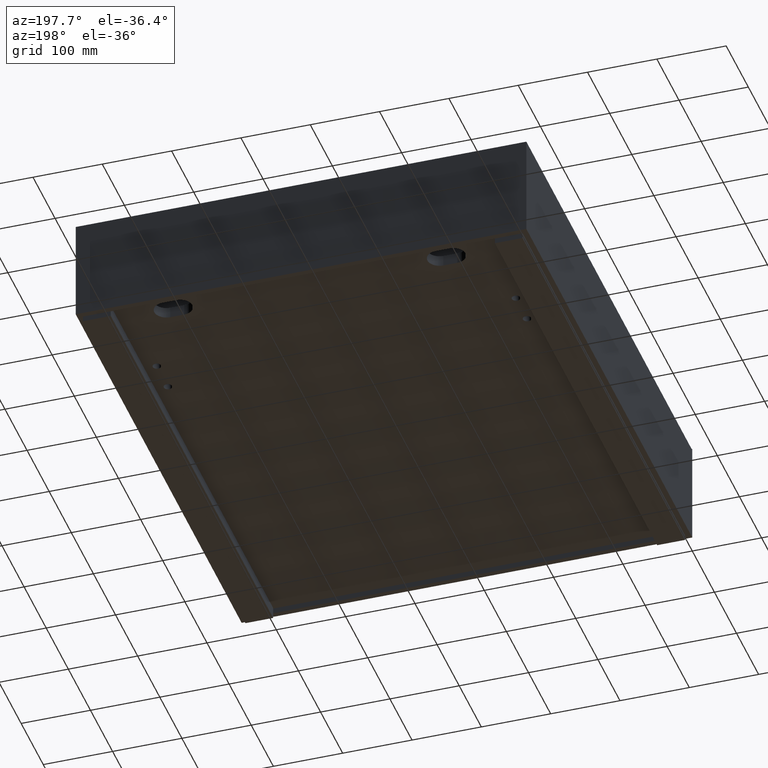
[diagram: clean part render]
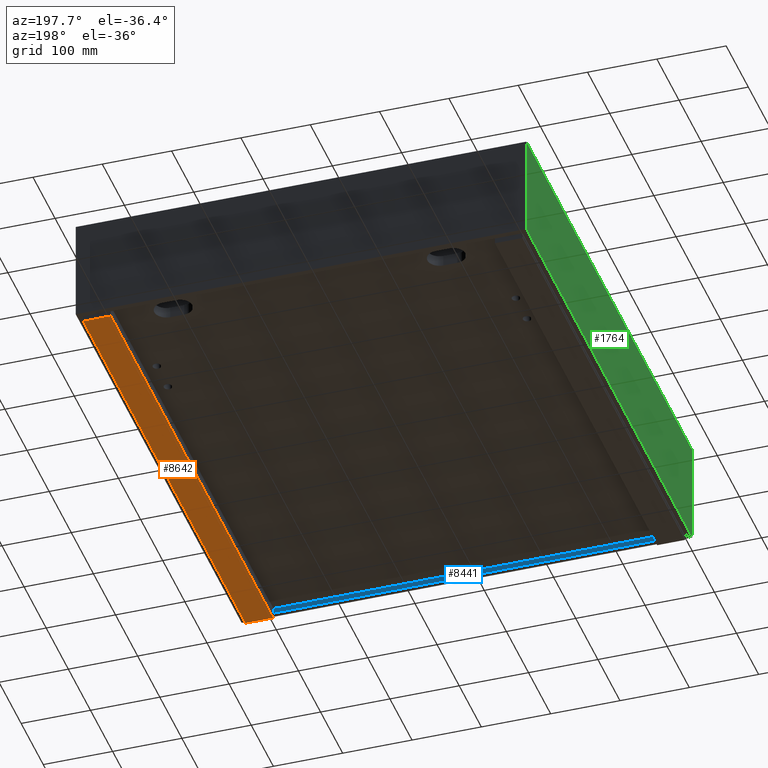
[diagram: same view with three faces highlighted in distinct colors, each labeled with its STEP entity id]
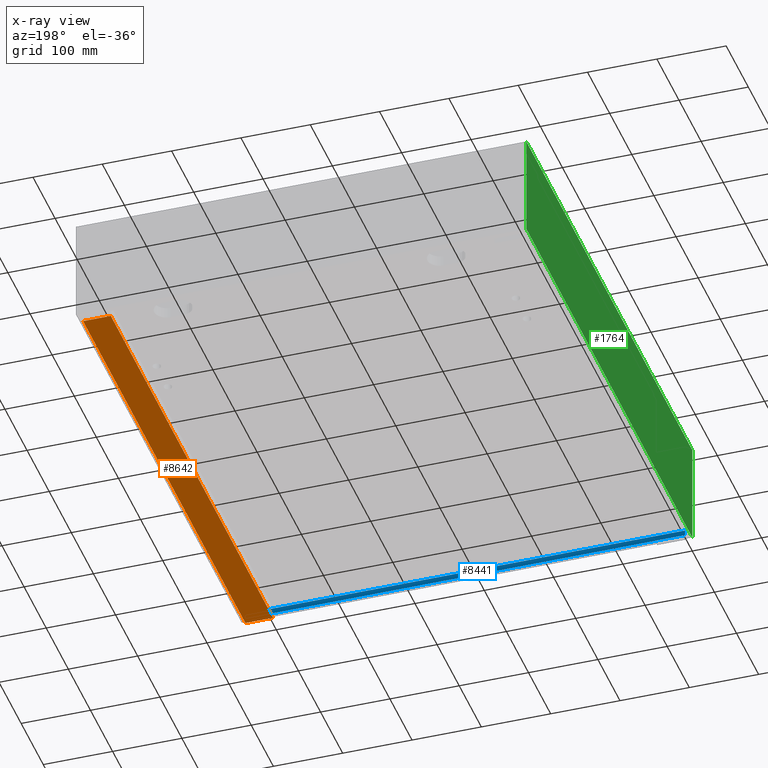
[diagram: x-ray of the same camera — body ghosted, the three highlighted faces saturated]
A machine part, auxiliary view with three faces highlighted in distinct colors.
The next image is the same camera in x-ray (body ghosted, the three faces saturated) — at least one of them is partly hidden behind the body in this view.
Their STEP definitions:

[orange] entity #8642 — the highlighted planar face has unit normal (0, 0, -1).
#9 = AXIS2_PLACEMENT_3D ( 'NONE', #1656, #5150, #8651 ) ;
#144 = LINE ( 'NONE', #3633, #8951 ) ;
#275 = LINE ( 'NONE', #3760, #6660 ) ;
#1144 = DIRECTION ( 'NONE',  ( 1.512565634716239722E-16, 1.000000000000000000, -0.0000000000000000000 ) ) ;
#1307 = CARTESIAN_POINT ( 'NONE',  ( 641.9999999999998863, 8.000000000000000000, -158.0000000000003126 ) ) ;
#1361 = VERTEX_POINT ( 'NONE', #1773 ) ;
#1598 = VERTEX_POINT ( 'NONE', #10067 ) ;
#1656 = CARTESIAN_POINT ( 'NONE',  ( -2.419716848542008714E-15, 0.0000000000000000000, -158.0000000000003126 ) ) ;
#1773 = CARTESIAN_POINT ( 'NONE',  ( 602.0000000000000000, 741.9999000000000251, -158.0000000000003126 ) ) ;
#2255 = EDGE_CURVE ( 'NONE', #1361, #1598, #275, .T. ) ;
#3633 = CARTESIAN_POINT ( 'NONE',  ( 642.0000000000000000, 741.9999000000000251, -158.0000000000003126 ) ) ;
#3760 = CARTESIAN_POINT ( 'NONE',  ( 642.0000000000000000, 741.9999000000000251, -158.0000000000003126 ) ) ;
#4302 = ORIENTED_EDGE ( 'NONE', *, *, #11279, .T. ) ;
#4440 = CARTESIAN_POINT ( 'NONE',  ( 601.9999999999998863, 8.000000000000000000, -158.0000000000003126 ) ) ;
#4804 = DIRECTION ( 'NONE',  ( -1.000000000000000000, 0.0000000000000000000, 0.0000000000000000000 ) ) ;
#5091 = VERTEX_POINT ( 'NONE', #11134 ) ;
#5150 = DIRECTION ( 'NONE',  ( 0.0000000000000000000, 0.0000000000000000000, -1.000000000000000000 ) ) ;
#5502 = LINE ( 'NONE', #9003, #6785 ) ;
#5998 = FACE_OUTER_BOUND ( 'NONE', #6544, .T. ) ;
#6544 = EDGE_LOOP ( 'NONE', ( #9162, #7152, #4302, #6625 ) ) ;
#6625 = ORIENTED_EDGE ( 'NONE', *, *, #2255, .T. ) ;
#6660 = VECTOR ( 'NONE', #7256, 1000.000000000000000 ) ;
#6785 = VECTOR ( 'NONE', #1144, 1000.000000000000000 ) ;
#7120 = DIRECTION ( 'NONE',  ( -1.512565634716239722E-16, -1.000000000000000000, 0.0000000000000000000 ) ) ;
#7152 = ORIENTED_EDGE ( 'NONE', *, *, #10775, .T. ) ;
#7256 = DIRECTION ( 'NONE',  ( 1.000000000000000000, -0.0000000000000000000, -0.0000000000000000000 ) ) ;
#7605 = EDGE_CURVE ( 'NONE', #1598, #5091, #144, .T. ) ;
#8642 = ADVANCED_FACE ( 'NONE', ( #5998 ), #9509, .T. ) ;
#8651 = DIRECTION ( 'NONE',  ( -1.000000000000000000, 0.0000000000000000000, 0.0000000000000000000 ) ) ;
#8951 = VECTOR ( 'NONE', #7120, 1000.000000000000000 ) ;
#9003 = CARTESIAN_POINT ( 'NONE',  ( 602.0000000000000000, 741.9999000000000251, -158.0000000000003126 ) ) ;
#9162 = ORIENTED_EDGE ( 'NONE', *, *, #7605, .T. ) ;
#9163 = LINE ( 'NONE', #1307, #10112 ) ;
#9509 = PLANE ( 'NONE',  #9 ) ;
#9865 = VERTEX_POINT ( 'NONE', #4440 ) ;
#10067 = CARTESIAN_POINT ( 'NONE',  ( 642.0000000000000000, 741.9999000000000251, -158.0000000000003126 ) ) ;
#10112 = VECTOR ( 'NONE', #4804, 1000.000000000000000 ) ;
#10775 = EDGE_CURVE ( 'NONE', #5091, #9865, #9163, .T. ) ;
#11134 = CARTESIAN_POINT ( 'NONE',  ( 641.9999999999998863, 8.000000000000000000, -158.0000000000003126 ) ) ;
#11279 = EDGE_CURVE ( 'NONE', #9865, #1361, #5502, .T. ) ;

[blue] entity #8441 — the highlighted planar face has unit normal (0, 1, 0).
#124 = CARTESIAN_POINT ( 'NONE',  ( -3.035766082959412415E-15, 8.000000000000000000, -142.0000000000000000 ) ) ;
#398 = CARTESIAN_POINT ( 'NONE',  ( 641.9999999999998863, 8.000000000000000000, 0.0000000000000000000 ) ) ;
#533 = VECTOR ( 'NONE', #6075, 1000.000000000000000 ) ;
#1218 = EDGE_CURVE ( 'NONE', #4160, #1593, #10143, .T. ) ;
#1593 = VERTEX_POINT ( 'NONE', #6561 ) ;
#1725 = VECTOR ( 'NONE', #5769, 1000.000000000000000 ) ;
#2015 = CARTESIAN_POINT ( 'NONE',  ( 8.000000000000062172, 8.000000000000000000, -142.0000000000000000 ) ) ;
#2111 = ORIENTED_EDGE ( 'NONE', *, *, #1218, .T. ) ;
#2277 = ORIENTED_EDGE ( 'NONE', *, *, #8472, .T. ) ;
#2286 = CARTESIAN_POINT ( 'NONE',  ( 0.0000000000000000000, 8.000000000000000000, -150.0000000000000000 ) ) ;
#2358 = DIRECTION ( 'NONE',  ( 0.0000000000000000000, 1.000000000000000000, 0.0000000000000000000 ) ) ;
#2592 = CARTESIAN_POINT ( 'NONE',  ( 8.000000000000062172, 8.000000000000000000, 0.0000000000000000000 ) ) ;
#2870 = VECTOR ( 'NONE', #3890, 1000.000000000000000 ) ;
#3214 = FACE_OUTER_BOUND ( 'NONE', #3370, .T. ) ;
#3370 = EDGE_LOOP ( 'NONE', ( #5926, #6884, #2111, #2277 ) ) ;
#3399 = CARTESIAN_POINT ( 'NONE',  ( 641.9999999999998863, 8.000000000000000000, -150.0000000000000000 ) ) ;
#3619 = DIRECTION ( 'NONE',  ( -1.000000000000000000, -0.0000000000000000000, 1.281026566875180510E-16 ) ) ;
#3890 = DIRECTION ( 'NONE',  ( 0.0000000000000000000, 0.0000000000000000000, -1.000000000000000000 ) ) ;
#4063 = VERTEX_POINT ( 'NONE', #6593 ) ;
#4160 = VERTEX_POINT ( 'NONE', #3399 ) ;
#4276 = EDGE_CURVE ( 'NONE', #4063, #11270, #7971, .T. ) ;
#4425 = EDGE_CURVE ( 'NONE', #4063, #4160, #8253, .T. ) ;
#5769 = DIRECTION ( 'NONE',  ( -1.000000000000000000, -0.0000000000000000000, -0.0000000000000000000 ) ) ;
#5842 = DIRECTION ( 'NONE',  ( 0.0000000000000000000, -0.0000000000000000000, 1.000000000000000000 ) ) ;
#5926 = ORIENTED_EDGE ( 'NONE', *, *, #4276, .F. ) ;
#6075 = DIRECTION ( 'NONE',  ( 0.0000000000000000000, -0.0000000000000000000, 1.000000000000000000 ) ) ;
#6561 = CARTESIAN_POINT ( 'NONE',  ( 8.000000000000062172, 8.000000000000000000, -150.0000000000000000 ) ) ;
#6593 = CARTESIAN_POINT ( 'NONE',  ( 641.9999999999998863, 8.000000000000000000, -142.0000000000000568 ) ) ;
#6702 = PLANE ( 'NONE',  #8610 ) ;
#6884 = ORIENTED_EDGE ( 'NONE', *, *, #4425, .T. ) ;
#7971 = LINE ( 'NONE', #124, #7984 ) ;
#7984 = VECTOR ( 'NONE', #3619, 1000.000000000000000 ) ;
#8253 = LINE ( 'NONE', #398, #2870 ) ;
#8441 = ADVANCED_FACE ( 'NONE', ( #3214 ), #6702, .T. ) ;
#8472 = EDGE_CURVE ( 'NONE', #1593, #11270, #10445, .T. ) ;
#8610 = AXIS2_PLACEMENT_3D ( 'NONE', #10216, #2358, #5842 ) ;
#10143 = LINE ( 'NONE', #2286, #1725 ) ;
#10216 = CARTESIAN_POINT ( 'NONE',  ( 0.0000000000000000000, 8.000000000000000000, 0.0000000000000000000 ) ) ;
#10445 = LINE ( 'NONE', #2592, #533 ) ;
#11270 = VERTEX_POINT ( 'NONE', #2015 ) ;

[green] entity #1764 — the highlighted planar face has unit normal (1, 0, -0).
#187 = CARTESIAN_POINT ( 'NONE',  ( 0.0000000000000000000, 899.2146105446782940, -150.0000000000000000 ) ) ;
#224 = CARTESIAN_POINT ( 'NONE',  ( 1.824723730729556232E-14, 0.0000000000000000000, -1.000000000000000888 ) ) ;
#406 = LINE ( 'NONE', #3897, #4092 ) ;
#435 = EDGE_LOOP ( 'NONE', ( #6145, #3374, #8603, #5494 ) ) ;
#474 = DIRECTION ( 'NONE',  ( -0.0000000000000000000, -1.000000000000000000, -0.0000000000000000000 ) ) ;
#1764 = ADVANCED_FACE ( 'NONE', ( #4540 ), #8030, .F. ) ;
#1831 = CARTESIAN_POINT ( 'NONE',  ( 0.0000000000000000000, 899.2146105446782940, -150.0000000000000000 ) ) ;
#1890 = EDGE_CURVE ( 'NONE', #10541, #10669, #406, .T. ) ;
#2048 = VECTOR ( 'NONE', #474, 1000.000000000000000 ) ;
#2609 = EDGE_CURVE ( 'NONE', #9755, #6482, #10638, .T. ) ;
#2783 = CARTESIAN_POINT ( 'NONE',  ( 0.0000000000000000000, 750.0000000000000000, -150.0000000000000000 ) ) ;
#3374 = ORIENTED_EDGE ( 'NONE', *, *, #9438, .T. ) ;
#3679 = DIRECTION ( 'NONE',  ( 1.000000000000000000, 0.0000000000000000000, -1.224646799147353207E-16 ) ) ;
#3728 = AXIS2_PLACEMENT_3D ( 'NONE', #187, #3679, #7166 ) ;
#3897 = CARTESIAN_POINT ( 'NONE',  ( 0.0000000000000000000, 0.0000000000000000000, -150.0000000000000000 ) ) ;
#4092 = VECTOR ( 'NONE', #7391, 1000.000000000000000 ) ;
#4540 = FACE_OUTER_BOUND ( 'NONE', #435, .T. ) ;
#4835 = LINE ( 'NONE', #8328, #2048 ) ;
#5321 = DIRECTION ( 'NONE',  ( -0.0000000000000000000, -1.000000000000000000, -0.0000000000000000000 ) ) ;
#5494 = ORIENTED_EDGE ( 'NONE', *, *, #10049, .F. ) ;
#6064 = CARTESIAN_POINT ( 'NONE',  ( 0.0000000000000000000, 0.0000000000000000000, -150.0000000000000000 ) ) ;
#6145 = ORIENTED_EDGE ( 'NONE', *, *, #2609, .F. ) ;
#6265 = DIRECTION ( 'NONE',  ( 1.224646799147353207E-16, -0.0000000000000000000, 1.000000000000000000 ) ) ;
#6482 = VERTEX_POINT ( 'NONE', #7444 ) ;
#6848 = CARTESIAN_POINT ( 'NONE',  ( 0.0000000000000000000, 750.0000000000000000, -150.0000000000000000 ) ) ;
#7166 = DIRECTION ( 'NONE',  ( -1.224646799147353207E-16, 0.0000000000000000000, -1.000000000000000000 ) ) ;
#7391 = DIRECTION ( 'NONE',  ( 1.224646799147353207E-16, 0.0000000000000000000, 1.000000000000000000 ) ) ;
#7444 = CARTESIAN_POINT ( 'NONE',  ( 1.824723730729556232E-14, 750.0000000000000000, -1.000000000000000888 ) ) ;
#8030 = PLANE ( 'NONE',  #3728 ) ;
#8328 = CARTESIAN_POINT ( 'NONE',  ( 1.824723730729556232E-14, 899.2146105446782940, -1.000000000000000888 ) ) ;
#8603 = ORIENTED_EDGE ( 'NONE', *, *, #1890, .T. ) ;
#8629 = VECTOR ( 'NONE', #5321, 1000.000000000000000 ) ;
#9244 = VECTOR ( 'NONE', #6265, 1000.000000000000000 ) ;
#9438 = EDGE_CURVE ( 'NONE', #9755, #10541, #9693, .T. ) ;
#9693 = LINE ( 'NONE', #1831, #8629 ) ;
#9755 = VERTEX_POINT ( 'NONE', #6848 ) ;
#10049 = EDGE_CURVE ( 'NONE', #6482, #10669, #4835, .T. ) ;
#10541 = VERTEX_POINT ( 'NONE', #6064 ) ;
#10638 = LINE ( 'NONE', #2783, #9244 ) ;
#10669 = VERTEX_POINT ( 'NONE', #224 ) ;